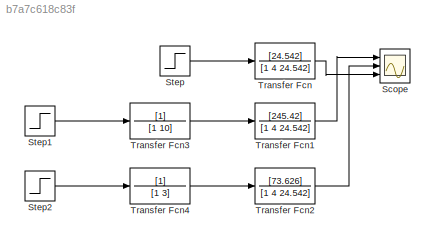
MODEL slx_b7a7c618c83f
KIND model
CONFIG AbsTol = auto
CONFIG EnableMultiTasking = off
CONFIG FixedStep = auto
CONFIG MaxStep = 0.003
CONFIG MinStep = 0.001
CONFIG RelTol = 1e-3
CONFIG SampleTimeConstraint = Unconstrained
CONFIG Solver = VariableStepAuto
CONFIG SolverName = VariableStepAuto
CONFIG StartTime = 0.0
CONFIG StopTime = 10.0
BLOCK [Scope] Scope
  Floating = off
  NumInputPorts = 3
  Ports = [3]
  ScopeSpecificationString = Simulink.scopes.TimeScopeBlockCfg('CurrentConfiguration', extmgr.ConfigurationSet(extmgr.Configuration('Core','General UI',true),extmgr.Configuration('Core','Source UI',true),extmgr.Configuration('Sources','WiredSimulink',true),extmgr.Configuration('Visuals','Time Domain',true,'SerializedDisplays',{struct('MinYLimReal','-0.15625','MaxYLimReal','1.40625','YLabelReal','','MinYLimMag','0.00000','MaxY...<+1418ch>
BLOCK [Step] Step
  SampleTime = 0
BLOCK [Step] Step1
  SampleTime = 0
BLOCK [Step] Step2
  SampleTime = 0
BLOCK [TransferFcn] Transfer Fcn
  Denominator = [1 4 24.542]
  Numerator = [24.542]
BLOCK [TransferFcn] Transfer Fcn1
  Denominator = [1 4 24.542]
  Numerator = [245.42]
BLOCK [TransferFcn] Transfer Fcn2
  Denominator = [1 4 24.542]
  Numerator = [73.626]
BLOCK [TransferFcn] Transfer Fcn3
  Denominator = [1 10]
BLOCK [TransferFcn] Transfer Fcn4
  Denominator = [1 3]
LINE Step1:1 -> Transfer Fcn3:1
LINE Step2:1 -> Transfer Fcn4:1
LINE Step:1 -> Transfer Fcn:1
LINE Transfer Fcn1:1 -> Scope:1
LINE Transfer Fcn2:1 -> Scope:2
LINE Transfer Fcn3:1 -> Transfer Fcn1:1
LINE Transfer Fcn4:1 -> Transfer Fcn2:1
LINE Transfer Fcn:1 -> Scope:3
